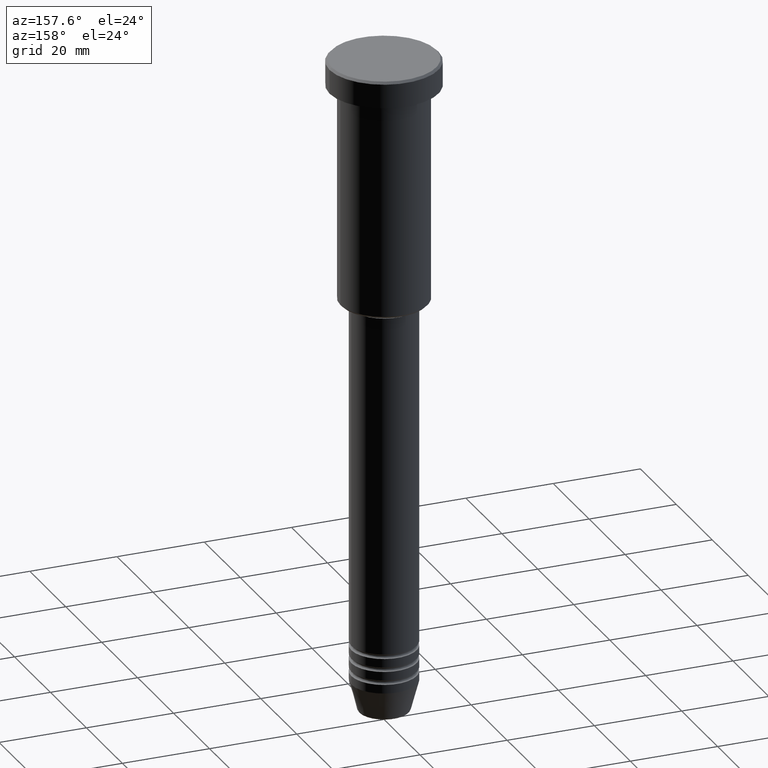
[diagram: clean part render]
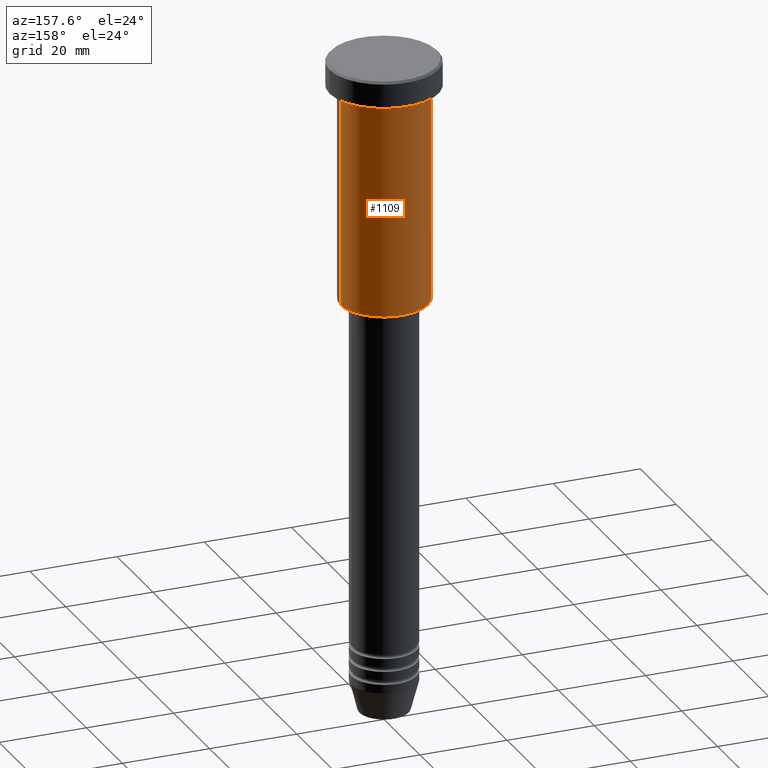
[diagram: same view with one face highlighted and labeled with its STEP entity id]
A machine part, auxiliary view. The second image highlights one B-rep face of the part: STEP entity #1109.
In plain terms, the highlighted cylindrical surface (partial cylindrical patch) has radius 10 mm, axis along (-0, -0, 1).
Its self-contained STEP definition (entity closure, byte-faithful):
#3 = CARTESIAN_POINT ( 'NONE',  ( -10.00000000000000000, 1.224646799147353256E-15, -55.49999999999995026 ) ) ;
#10 = DIRECTION ( 'NONE',  ( -0.000000000000000000, -0.000000000000000000, 1.000000000000000000 ) ) ;
#14 = CARTESIAN_POINT ( 'NONE',  ( 0.000000000000000000, 0.000000000000000000, -6.999999999999996447 ) ) ;
#29 = ORIENTED_EDGE ( 'NONE', *, *, #885, .F. ) ;
#49 = LINE ( 'NONE', #328, #438 ) ;
#91 = CYLINDRICAL_SURFACE ( 'NONE', #539, 10.00000000000000000 ) ;
#225 = CIRCLE ( 'NONE', #523, 10.00000000000000000 ) ;
#241 = EDGE_LOOP ( 'NONE', ( #759, #325, #497, #29 ) ) ;
#291 = VERTEX_POINT ( 'NONE', #738 ) ;
#294 = DIRECTION ( 'NONE',  ( -1.000000000000000000, 0.000000000000000000, 0.000000000000000000 ) ) ;
#300 = VERTEX_POINT ( 'NONE', #469 ) ;
#322 = CARTESIAN_POINT ( 'NONE',  ( -10.00000000000000000, 1.224646799147353256E-15, 0.000000000000000000 ) ) ;
#325 = ORIENTED_EDGE ( 'NONE', *, *, #761, .T. ) ;
#328 = CARTESIAN_POINT ( 'NONE',  ( 10.00000000000000000, 0.000000000000000000, 0.000000000000000000 ) ) ;
#368 = DIRECTION ( 'NONE',  ( -0.000000000000000000, -0.000000000000000000, 1.000000000000000000 ) ) ;
#386 = VERTEX_POINT ( 'NONE', #894 ) ;
#438 = VECTOR ( 'NONE', #689, 1000.000000000000000 ) ;
#465 = CARTESIAN_POINT ( 'NONE',  ( 0.000000000000000000, 0.000000000000000000, 0.000000000000000000 ) ) ;
#469 = CARTESIAN_POINT ( 'NONE',  ( 10.00000000000000000, 0.000000000000000000, -6.999999999999996447 ) ) ;
#482 = LINE ( 'NONE', #322, #882 ) ;
#488 = DIRECTION ( 'NONE',  ( -0.000000000000000000, -0.000000000000000000, 1.000000000000000000 ) ) ;
#497 = ORIENTED_EDGE ( 'NONE', *, *, #1130, .F. ) ;
#523 = AXIS2_PLACEMENT_3D ( 'NONE', #740, #10, #294 ) ;
#539 = AXIS2_PLACEMENT_3D ( 'NONE', #465, #368, #728 ) ;
#542 = DIRECTION ( 'NONE',  ( -0.000000000000000000, -0.000000000000000000, 1.000000000000000000 ) ) ;
#689 = DIRECTION ( 'NONE',  ( -0.000000000000000000, -0.000000000000000000, 1.000000000000000000 ) ) ;
#711 = AXIS2_PLACEMENT_3D ( 'NONE', #14, #542, #826 ) ;
#721 = FACE_OUTER_BOUND ( 'NONE', #241, .T. ) ;
#728 = DIRECTION ( 'NONE',  ( 1.000000000000000000, 0.000000000000000000, 0.000000000000000000 ) ) ;
#738 = CARTESIAN_POINT ( 'NONE',  ( 10.00000000000000000, 0.000000000000000000, -55.49999999999995026 ) ) ;
#740 = CARTESIAN_POINT ( 'NONE',  ( 0.000000000000000000, 0.000000000000000000, -55.49999999999995026 ) ) ;
#751 = CIRCLE ( 'NONE', #711, 10.00000000000000000 ) ;
#759 = ORIENTED_EDGE ( 'NONE', *, *, #1156, .T. ) ;
#761 = EDGE_CURVE ( 'NONE', #1158, #386, #482, .T. ) ;
#826 = DIRECTION ( 'NONE',  ( 1.000000000000000000, 0.000000000000000000, 0.000000000000000000 ) ) ;
#882 = VECTOR ( 'NONE', #488, 1000.000000000000000 ) ;
#885 = EDGE_CURVE ( 'NONE', #291, #300, #49, .T. ) ;
#894 = CARTESIAN_POINT ( 'NONE',  ( -10.00000000000000000, 1.224646799147353256E-15, -6.999999999999996447 ) ) ;
#1109 = ADVANCED_FACE ( 'NONE', ( #721 ), #91, .T. ) ;
#1130 = EDGE_CURVE ( 'NONE', #300, #386, #751, .T. ) ;
#1156 = EDGE_CURVE ( 'NONE', #291, #1158, #225, .T. ) ;
#1158 = VERTEX_POINT ( 'NONE', #3 ) ;